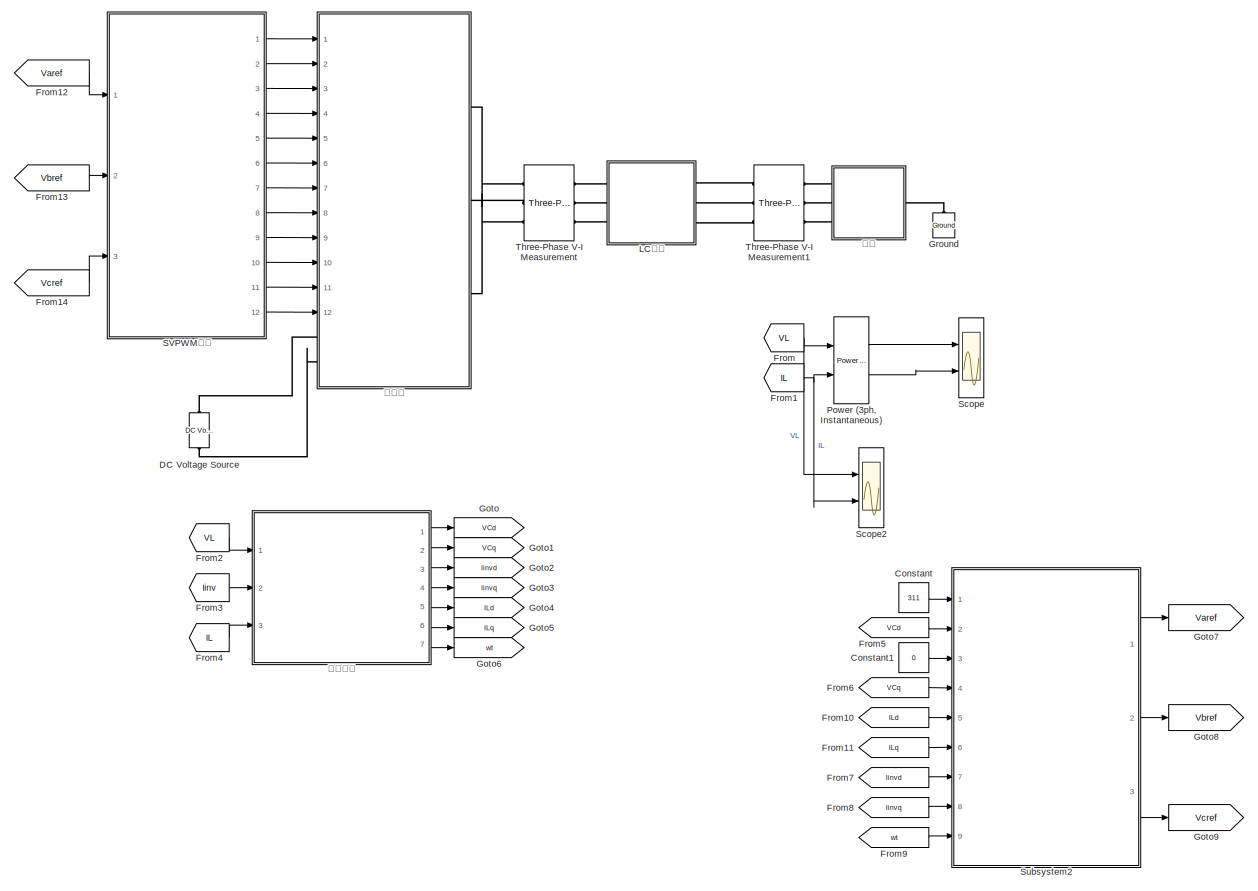
[diagram: root canvas - part 1/2, most of the canvas]
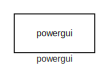
[diagram: root canvas - part 2/2, top left region]
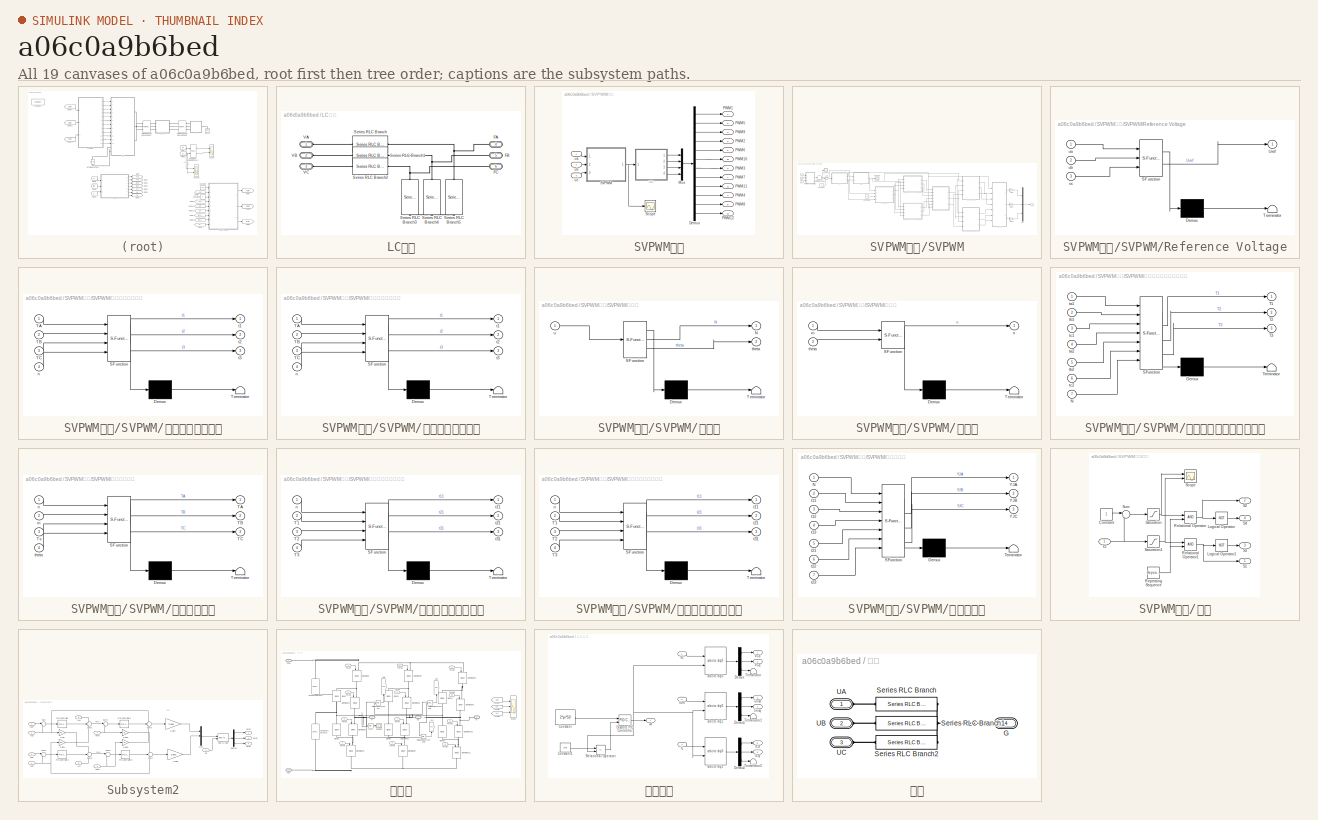
[diagram: thumbnail index - all 19 canvases of the model, root first then tree order]
MODEL slx_a06c0a9b6bed
KIND model
CONFIG AbsTol = auto
CONFIG EnableMultiTasking = off
CONFIG FixedStep = auto
CONFIG InitFcn = disp('开关频率20000Hz')\nTs = 1/20000;
CONFIG MaxStep = auto
CONFIG MinStep = auto
CONFIG RelTol = 1e-3
CONFIG SampleTimeConstraint = Unconstrained
CONFIG SolverName = ode23t
CONFIG StartTime = 0.0
CONFIG StopTime = 1
BLOCK [Constant] Constant
  Value = 311
BLOCK [Constant] Constant1
  Value = 0
BLOCK [Reference] DC Voltage Source  REF=spsDCVoltageSourceLib/DC Voltage Source
  Ports = [0, 0, 0, 0, 0, 1, 1]
  SourceBlock = spsDCVoltageSourceLib/DC Voltage Source
  SourceProductBaseCode = PS
  SourceType = DC Voltage Source
BLOCK [From] From
  GotoTag = VL
  TagVisibility = global
BLOCK [From] From1
  GotoTag = IL
  TagVisibility = global
BLOCK [From] From10
  GotoTag = ILd
BLOCK [From] From11
  GotoTag = ILq
BLOCK [From] From12
  GotoTag = Varef
BLOCK [From] From13
  GotoTag = Vbref
BLOCK [From] From14
  GotoTag = Vcref
BLOCK [From] From2
  GotoTag = VL
  TagVisibility = global
BLOCK [From] From3
  GotoTag = Iinv
  TagVisibility = global
BLOCK [From] From4
  GotoTag = IL
  TagVisibility = global
BLOCK [From] From5
  GotoTag = VCd
BLOCK [From] From6
  GotoTag = VCq
BLOCK [From] From7
  GotoTag = Iinvd
BLOCK [From] From8
  GotoTag = Iinvq
BLOCK [From] From9
  GotoTag = wt
BLOCK [Goto] Goto
  GotoTag = VCd
BLOCK [Goto] Goto1
  GotoTag = VCq
BLOCK [Goto] Goto2
  GotoTag = Iinvd
BLOCK [Goto] Goto3
  GotoTag = Iinvq
BLOCK [Goto] Goto4
  GotoTag = ILd
BLOCK [Goto] Goto5
  GotoTag = ILq
BLOCK [Goto] Goto6
  GotoTag = wt
BLOCK [Goto] Goto7
  GotoTag = Varef
BLOCK [Goto] Goto8
  GotoTag = Vbref
BLOCK [Goto] Goto9
  GotoTag = Vcref
BLOCK [Reference] Ground  REF=spsGroundLib/Ground
  NameLocation = right
  Ports = [0, 0, 0, 0, 0, 1]
  SourceBlock = spsGroundLib/Ground
  SourceProductBaseCode = PS
  SourceType = Ground
BLOCK [SubSystem] LC滤波
  Ports = [0, 0, 0, 0, 0, 3, 3]
  RequestExecContextInheritance = off
BLOCK [PMIOPort] LC滤波/FA
  Port = 4
  Side = Right
BLOCK [PMIOPort] LC滤波/FB
  Port = 5
  Side = Right
BLOCK [PMIOPort] LC滤波/FC
  Port = 6
  Side = Right
BLOCK [Reference] LC滤波/Series RLC Branch  REF=spsSeriesRLCBranchLib/Series RLC Branch
  Ports = [0, 0, 0, 0, 0, 1, 1]
  SourceBlock = spsSeriesRLCBranchLib/Series RLC Branch
  SourceProductBaseCode = PS
  SourceType = Series RLC Branch
BLOCK [Reference] LC滤波/Series RLC Branch1  REF=spsSeriesRLCBranchLib/Series RLC Branch
  Ports = [0, 0, 0, 0, 0, 1, 1]
  SourceBlock = spsSeriesRLCBranchLib/Series RLC Branch
  SourceProductBaseCode = PS
  SourceType = Series RLC Branch
BLOCK [Reference] LC滤波/Series RLC Branch2  REF=spsSeriesRLCBranchLib/Series RLC Branch
  Ports = [0, 0, 0, 0, 0, 1, 1]
  SourceBlock = spsSeriesRLCBranchLib/Series RLC Branch
  SourceProductBaseCode = PS
  SourceType = Series RLC Branch
BLOCK [Reference] LC滤波/Series RLC Branch3  REF=spsSeriesRLCBranchLib/Series RLC Branch
  NameLocation = left
  Ports = [0, 0, 0, 0, 0, 1, 1]
  SourceBlock = spsSeriesRLCBranchLib/Series RLC Branch
  SourceProductBaseCode = PS
  SourceType = Series RLC Branch
BLOCK [Reference] LC滤波/Series RLC Branch4  REF=spsSeriesRLCBranchLib/Series RLC Branch
  NameLocation = left
  Ports = [0, 0, 0, 0, 0, 1, 1]
  SourceBlock = spsSeriesRLCBranchLib/Series RLC Branch
  SourceProductBaseCode = PS
  SourceType = Series RLC Branch
BLOCK [Reference] LC滤波/Series RLC Branch5  REF=spsSeriesRLCBranchLib/Series RLC Branch
  NameLocation = left
  Ports = [0, 0, 0, 0, 0, 1, 1]
  SourceBlock = spsSeriesRLCBranchLib/Series RLC Branch
  SourceProductBaseCode = PS
  SourceType = Series RLC Branch
BLOCK [PMIOPort] LC滤波/VA
  Side = Left
BLOCK [PMIOPort] LC滤波/VB
  Port = 2
  Side = Left
BLOCK [PMIOPort] LC滤波/VC
  Port = 3
  Side = Left
BLOCK [Reference] Power (3ph, Instantaneous)  REF=spsPower3phInstantaneousLib/Power
(3ph, Instantaneous)
  Ports = [2, 2]
  SourceBlock = spsPower3phInstantaneousLib/Power\n(3ph, Instantaneous)
  SourceProductBaseCode = PS
  SourceType = Power (3ph, Instantaneous)
BLOCK [SubSystem] SVPWM调制
  Ports = [3, 12]
  RequestExecContextInheritance = off
BLOCK [Demux] SVPWM调制/Demux
  Outputs = 12
  Ports = [1, 12]
BLOCK [Mux] SVPWM调制/Mux
  DisplayOption = bar
  Ports = [4, 1]
BLOCK [Outport] SVPWM调制/PWM1
BLOCK [Outport] SVPWM调制/PWM10
  Port = 10
BLOCK [Outport] SVPWM调制/PWM11
  Port = 11
BLOCK [Outport] SVPWM调制/PWM12
  Port = 12
BLOCK [Outport] SVPWM调制/PWM2
  Port = 2
BLOCK [Outport] SVPWM调制/PWM3
  Port = 3
BLOCK [Outport] SVPWM调制/PWM4
  Port = 4
BLOCK [Outport] SVPWM调制/PWM5
  Port = 5
BLOCK [Outport] SVPWM调制/PWM6
  Port = 6
BLOCK [Outport] SVPWM调制/PWM7
  Port = 7
BLOCK [Outport] SVPWM调制/PWM8
  Port = 8
BLOCK [Outport] SVPWM调制/PWM9
  Port = 9
BLOCK [SubSystem] SVPWM调制/SVPWM
  Ports = [3, 1]
  RequestExecContextInheritance = off
BLOCK [ComplexToMagnitudeAngle] SVPWM调制/SVPWM/Complex to Magnitude-Angle
  Ports = [1, 2]
BLOCK [Constant] SVPWM调制/SVPWM/Constant
  Value = pi
BLOCK [Constant] SVPWM调制/SVPWM/Constant1
  Value = Ts
BLOCK [Gain] SVPWM调制/SVPWM/Gain
  Gain = 1/Ts
BLOCK [Gain] SVPWM调制/SVPWM/Gain1
  Gain = 1/Ts
BLOCK [Gain] SVPWM调制/SVPWM/Gain2
  Gain = 1/Ts
BLOCK [Mux] SVPWM调制/SVPWM/Mux
  DisplayOption = bar
  Inputs = 3
  Ports = [3, 1]
BLOCK [SubSystem] SVPWM调制/SVPWM/Reference Voltage
  ErrorFcn = Stateflow.Translate.translate
  PermitHierarchicalResolution = ExplicitOnly
  Ports = [3, 1]
  RequestExecContextInheritance = off
  SFBlockType = MATLAB Function
  TreatAsAtomicUnit = on
BLOCK [Demux] SVPWM调制/SVPWM/Reference Voltage/ Demux 
  Outputs = 1
  Ports = [1, 1]
BLOCK [S-Function] SVPWM调制/SVPWM/Reference Voltage/ SFunction 
  EnableBusSupport = on
  FunctionName = sf_sfun
  PortCounts = [3 2]
  Ports = [3, 2]
  SFcnIsStateOwnerBlock = off
  SFunctionDeploymentMode = off
  Tag = Stateflow S-Function 2
BLOCK [Terminator] SVPWM调制/SVPWM/Reference Voltage/ Terminator 
BLOCK [Outport] SVPWM调制/SVPWM/Reference Voltage/Uref
BLOCK [Inport] SVPWM调制/SVPWM/Reference Voltage/ua
BLOCK [Inport] SVPWM调制/SVPWM/Reference Voltage/ub
  Port = 2
BLOCK [Inport] SVPWM调制/SVPWM/Reference Voltage/uc
  Port = 3
BLOCK [Scope] SVPWM调制/SVPWM/Scope2
  Floating = off
  NumInputPorts = 1
  Ports = [1]
  ScopeSpecificationString = Simulink.scopes.TimeScopeBlockCfg('CurrentConfiguration', extmgr.ConfigurationSet(extmgr.Configuration('Core','General UI',true),extmgr.Configuration('Core','Source UI',true),extmgr.Configuration('Sources','WiredSimulink',true,'DataLoggingVariableName','ScopeData2'),extmgr.Configuration('Visuals','Time Domain',true,'SerializedDisplays',{struct('MinYLimReal','-3.61601','MaxYLimReal','3.90932','YLab...<+1433ch>
BLOCK [Scope] SVPWM调制/SVPWM/Scope3
  Floating = off
  NumInputPorts = 1
  Ports = [1]
  ScopeSpecificationString = Simulink.scopes.TimeScopeBlockCfg('CurrentConfiguration', extmgr.ConfigurationSet(extmgr.Configuration('Core','General UI',true),extmgr.Configuration('Core','Source UI',true),extmgr.Configuration('Sources','WiredSimulink',true,'DataLoggingVariableName','ScopeData1'),extmgr.Configuration('Visuals','Time Domain',true,'SerializedDisplays',{struct('MinYLimReal','2.625','MaxYLimReal','6.375','YLabelRea...<+1390ch>
BLOCK [Sum] SVPWM调制/SVPWM/Sum
  Inputs = |++
  Ports = [2, 1]
BLOCK [Outport] SVPWM调制/SVPWM/YJ
BLOCK [Inport] SVPWM调制/SVPWM/ua
BLOCK [Inport] SVPWM调制/SVPWM/ub
  Port = 2
BLOCK [Inport] SVPWM调制/SVPWM/uc
  Port = 3
BLOCK [SubSystem] SVPWM调制/SVPWM/上半周期时间分配
  ErrorFcn = Stateflow.Translate.translate
  PermitHierarchicalResolution = ExplicitOnly
  Ports = [4, 3]
  RequestExecContextInheritance = off
  SFBlockType = MATLAB Function
  TreatAsAtomicUnit = on
BLOCK [Demux] SVPWM调制/SVPWM/上半周期时间分配/ Demux 
  Outputs = 1
  Ports = [1, 1]
BLOCK [S-Function] SVPWM调制/SVPWM/上半周期时间分配/ SFunction 
  EnableBusSupport = on
  FunctionName = sf_sfun
  PortCounts = [4 4]
  Ports = [4, 4]
  SFcnIsStateOwnerBlock = off
  SFunctionDeploymentMode = off
  Tag = Stateflow S-Function 5
BLOCK [Terminator] SVPWM调制/SVPWM/上半周期时间分配/ Terminator 
BLOCK [Inport] SVPWM调制/SVPWM/上半周期时间分配/TA
BLOCK [Inport] SVPWM调制/SVPWM/上半周期时间分配/TB
  Port = 2
BLOCK [Inport] SVPWM调制/SVPWM/上半周期时间分配/TC
  Port = 3
BLOCK [Inport] SVPWM调制/SVPWM/上半周期时间分配/n
  Port = 4
BLOCK [Outport] SVPWM调制/SVPWM/上半周期时间分配/t1
BLOCK [Outport] SVPWM调制/SVPWM/上半周期时间分配/t2
  Port = 2
BLOCK [Outport] SVPWM调制/SVPWM/上半周期时间分配/t3
  Port = 3
BLOCK [SubSystem] SVPWM调制/SVPWM/下半周期时间分配
  ErrorFcn = Stateflow.Translate.translate
  PermitHierarchicalResolution = ExplicitOnly
  Ports = [4, 3]
  RequestExecContextInheritance = off
  SFBlockType = MATLAB Function
  TreatAsAtomicUnit = on
BLOCK [Demux] SVPWM调制/SVPWM/下半周期时间分配/ Demux 
  Outputs = 1
  Ports = [1, 1]
BLOCK [S-Function] SVPWM调制/SVPWM/下半周期时间分配/ SFunction 
  EnableBusSupport = on
  FunctionName = sf_sfun
  PortCounts = [4 4]
  Ports = [4, 4]
  SFcnIsStateOwnerBlock = off
  SFunctionDeploymentMode = off
  Tag = Stateflow S-Function 6
BLOCK [Terminator] SVPWM调制/SVPWM/下半周期时间分配/ Terminator 
BLOCK [Inport] SVPWM调制/SVPWM/下半周期时间分配/TA
BLOCK [Inport] SVPWM调制/SVPWM/下半周期时间分配/TB
  Port = 2
BLOCK [Inport] SVPWM调制/SVPWM/下半周期时间分配/TC
  Port = 3
BLOCK [Inport] SVPWM调制/SVPWM/下半周期时间分配/n
  Port = 4
BLOCK [Outport] SVPWM调制/SVPWM/下半周期时间分配/t1
BLOCK [Outport] SVPWM调制/SVPWM/下半周期时间分配/t2
  Port = 2
BLOCK [Outport] SVPWM调制/SVPWM/下半周期时间分配/t3
  Port = 3
BLOCK [SubSystem] SVPWM调制/SVPWM/大扇区
  ErrorFcn = Stateflow.Translate.translate
  PermitHierarchicalResolution = ExplicitOnly
  Ports = [1, 2]
  RequestExecContextInheritance = off
  SFBlockType = MATLAB Function
  TreatAsAtomicUnit = on
BLOCK [Demux] SVPWM调制/SVPWM/大扇区/ Demux 
  Outputs = 1
  Ports = [1, 1]
BLOCK [S-Function] SVPWM调制/SVPWM/大扇区/ SFunction 
  EnableBusSupport = on
  FunctionName = sf_sfun
  PortCounts = [1 3]
  Ports = [1, 3]
  SFcnIsStateOwnerBlock = off
  SFunctionDeploymentMode = off
  Tag = Stateflow S-Function 1
BLOCK [Terminator] SVPWM调制/SVPWM/大扇区/ Terminator 
BLOCK [Outport] SVPWM调制/SVPWM/大扇区/N
BLOCK [Outport] SVPWM调制/SVPWM/大扇区/theta
  Port = 2
BLOCK [Inport] SVPWM调制/SVPWM/大扇区/u
BLOCK [SubSystem] SVPWM调制/SVPWM/小扇区
  ErrorFcn = Stateflow.Translate.translate
  PermitHierarchicalResolution = ExplicitOnly
  Ports = [2, 1]
  RequestExecContextInheritance = off
  SFBlockType = MATLAB Function
  TreatAsAtomicUnit = on
BLOCK [Demux] SVPWM调制/SVPWM/小扇区/ Demux 
  Outputs = 1
  Ports = [1, 1]
BLOCK [S-Function] SVPWM调制/SVPWM/小扇区/ SFunction 
  EnableBusSupport = on
  FunctionName = sf_sfun
  PortCounts = [2 2]
  Ports = [2, 2]
  SFcnIsStateOwnerBlock = off
  SFunctionDeploymentMode = off
  Tag = Stateflow S-Function 3
BLOCK [Terminator] SVPWM调制/SVPWM/小扇区/ Terminator 
BLOCK [Inport] SVPWM调制/SVPWM/小扇区/m
BLOCK [Outport] SVPWM调制/SVPWM/小扇区/n
BLOCK [Inport] SVPWM调制/SVPWM/小扇区/theta
  Port = 2
BLOCK [SubSystem] SVPWM调制/SVPWM/按规律选择实际时间分配
  ErrorFcn = Stateflow.Translate.translate
  PermitHierarchicalResolution = ExplicitOnly
  Ports = [7, 3]
  RequestExecContextInheritance = off
  SFBlockType = MATLAB Function
  TreatAsAtomicUnit = on
BLOCK [Demux] SVPWM调制/SVPWM/按规律选择实际时间分配/ Demux 
  Outputs = 1
  Ports = [1, 1]
BLOCK [S-Function] SVPWM调制/SVPWM/按规律选择实际时间分配/ SFunction 
  EnableBusSupport = on
  FunctionName = sf_sfun
  PortCounts = [7 4]
  Ports = [7, 4]
  SFcnIsStateOwnerBlock = off
  SFunctionDeploymentMode = off
  Tag = Stateflow S-Function 7
BLOCK [Terminator] SVPWM调制/SVPWM/按规律选择实际时间分配/ Terminator 
BLOCK [Inport] SVPWM调制/SVPWM/按规律选择实际时间分配/N
  Port = 7
BLOCK [Outport] SVPWM调制/SVPWM/按规律选择实际时间分配/T1
BLOCK [Outport] SVPWM调制/SVPWM/按规律选择实际时间分配/T2
  Port = 2
BLOCK [Outport] SVPWM调制/SVPWM/按规律选择实际时间分配/T3
  Port = 3
BLOCK [Inport] SVPWM调制/SVPWM/按规律选择实际时间分配/ta1
BLOCK [Inport] SVPWM调制/SVPWM/按规律选择实际时间分配/ta2
  Port = 4
BLOCK [Inport] SVPWM调制/SVPWM/按规律选择实际时间分配/tb1
  Port = 2
BLOCK [Inport] SVPWM调制/SVPWM/按规律选择实际时间分配/tb2
  Port = 5
BLOCK [Inport] SVPWM调制/SVPWM/按规律选择实际时间分配/tc1
  Port = 3
BLOCK [Inport] SVPWM调制/SVPWM/按规律选择实际时间分配/tc2
  Port = 6
BLOCK [SubSystem] SVPWM调制/SVPWM/矢量作用时间
  ErrorFcn = Stateflow.Translate.translate
  PermitHierarchicalResolution = ExplicitOnly
  Ports = [4, 3]
  RequestExecContextInheritance = off
  SFBlockType = MATLAB Function
  TreatAsAtomicUnit = on
BLOCK [Demux] SVPWM调制/SVPWM/矢量作用时间/ Demux 
  Outputs = 1
  Ports = [1, 1]
BLOCK [S-Function] SVPWM调制/SVPWM/矢量作用时间/ SFunction 
  EnableBusSupport = on
  FunctionName = sf_sfun
  PortCounts = [4 4]
  Ports = [4, 4]
  SFcnIsStateOwnerBlock = off
  SFunctionDeploymentMode = off
  Tag = Stateflow S-Function 4
BLOCK [Terminator] SVPWM调制/SVPWM/矢量作用时间/ Terminator 
BLOCK [Outport] SVPWM调制/SVPWM/矢量作用时间/TA
BLOCK [Outport] SVPWM调制/SVPWM/矢量作用时间/TB
  Port = 2
BLOCK [Outport] SVPWM调制/SVPWM/矢量作用时间/TC
  Port = 3
BLOCK [Inport] SVPWM调制/SVPWM/矢量作用时间/Ts
  Port = 3
BLOCK [Inport] SVPWM调制/SVPWM/矢量作用时间/m
  Port = 2
BLOCK [Inport] SVPWM调制/SVPWM/矢量作用时间/n
BLOCK [Inport] SVPWM调制/SVPWM/矢量作用时间/theta
  Port = 4
BLOCK [SubSystem] SVPWM调制/SVPWM/第一大扇区羊角分配
  ErrorFcn = Stateflow.Translate.translate
  PermitHierarchicalResolution = ExplicitOnly
  Ports = [4, 3]
  RequestExecContextInheritance = off
  SFBlockType = MATLAB Function
  TreatAsAtomicUnit = on
BLOCK [Demux] SVPWM调制/SVPWM/第一大扇区羊角分配/ Demux 
  Outputs = 1
  Ports = [1, 1]
BLOCK [S-Function] SVPWM调制/SVPWM/第一大扇区羊角分配/ SFunction 
  EnableBusSupport = on
  FunctionName = sf_sfun
  PortCounts = [4 4]
  Ports = [4, 4]
  SFcnIsStateOwnerBlock = off
  SFunctionDeploymentMode = off
  Tag = Stateflow S-Function 8
BLOCK [Terminator] SVPWM调制/SVPWM/第一大扇区羊角分配/ Terminator 
BLOCK [Inport] SVPWM调制/SVPWM/第一大扇区羊角分配/T1
  Port = 2
BLOCK [Inport] SVPWM调制/SVPWM/第一大扇区羊角分配/T2
  Port = 3
BLOCK [Inport] SVPWM调制/SVPWM/第一大扇区羊角分配/T3
  Port = 4
BLOCK [Inport] SVPWM调制/SVPWM/第一大扇区羊角分配/n
BLOCK [Outport] SVPWM调制/SVPWM/第一大扇区羊角分配/t11
BLOCK [Outport] SVPWM调制/SVPWM/第一大扇区羊角分配/t21
  Port = 2
BLOCK [Outport] SVPWM调制/SVPWM/第一大扇区羊角分配/t31
  Port = 3
BLOCK [SubSystem] SVPWM调制/SVPWM/第二大扇区羊角分配
  ErrorFcn = Stateflow.Translate.translate
  PermitHierarchicalResolution = ExplicitOnly
  Ports = [4, 3]
  RequestExecContextInheritance = off
  SFBlockType = MATLAB Function
  TreatAsAtomicUnit = on
BLOCK [Demux] SVPWM调制/SVPWM/第二大扇区羊角分配/ Demux 
  Outputs = 1
  Ports = [1, 1]
BLOCK [S-Function] SVPWM调制/SVPWM/第二大扇区羊角分配/ SFunction 
  EnableBusSupport = on
  FunctionName = sf_sfun
  PortCounts = [4 4]
  Ports = [4, 4]
  SFcnIsStateOwnerBlock = off
  SFunctionDeploymentMode = off
  Tag = Stateflow S-Function 9
BLOCK [Terminator] SVPWM调制/SVPWM/第二大扇区羊角分配/ Terminator 
BLOCK [Inport] SVPWM调制/SVPWM/第二大扇区羊角分配/T1
  Port = 2
BLOCK [Inport] SVPWM调制/SVPWM/第二大扇区羊角分配/T2
  Port = 3
BLOCK [Inport] SVPWM调制/SVPWM/第二大扇区羊角分配/T3
  Port = 4
BLOCK [Inport] SVPWM调制/SVPWM/第二大扇区羊角分配/n
BLOCK [Outport] SVPWM调制/SVPWM/第二大扇区羊角分配/t11
BLOCK [Outport] SVPWM调制/SVPWM/第二大扇区羊角分配/t21
  Port = 2
BLOCK [Outport] SVPWM调制/SVPWM/第二大扇区羊角分配/t31
  Port = 3
BLOCK [SubSystem] SVPWM调制/SVPWM/羊角波生成
  ErrorFcn = Stateflow.Translate.translate
  PermitHierarchicalResolution = ExplicitOnly
  Ports = [7, 3]
  RequestExecContextInheritance = off
  SFBlockType = MATLAB Function
  TreatAsAtomicUnit = on
BLOCK [Demux] SVPWM调制/SVPWM/羊角波生成/ Demux 
  Outputs = 1
  Ports = [1, 1]
BLOCK [S-Function] SVPWM调制/SVPWM/羊角波生成/ SFunction 
  EnableBusSupport = on
  FunctionName = sf_sfun
  PortCounts = [7 4]
  Ports = [7, 4]
  SFcnIsStateOwnerBlock = off
  SFunctionDeploymentMode = off
  Tag = Stateflow S-Function 10
BLOCK [Terminator] SVPWM调制/SVPWM/羊角波生成/ Terminator 
BLOCK [Inport] SVPWM调制/SVPWM/羊角波生成/N
BLOCK [Outport] SVPWM调制/SVPWM/羊角波生成/YJA
BLOCK [Outport] SVPWM调制/SVPWM/羊角波生成/YJB
  Port = 2
BLOCK [Outport] SVPWM调制/SVPWM/羊角波生成/YJC
  Port = 3
BLOCK [Inport] SVPWM调制/SVPWM/羊角波生成/t11
  Port = 2
BLOCK [Inport] SVPWM调制/SVPWM/羊角波生成/t12
  Port = 3
BLOCK [Inport] SVPWM调制/SVPWM/羊角波生成/t13
  Port = 4
BLOCK [Inport] SVPWM调制/SVPWM/羊角波生成/t21
  Port = 5
BLOCK [Inport] SVPWM调制/SVPWM/羊角波生成/t22
  Port = 6
BLOCK [Inport] SVPWM调制/SVPWM/羊角波生成/t23
  Port = 7
BLOCK [Scope] SVPWM调制/Scope
  Floating = off
  NumInputPorts = 1
  Ports = [1]
  ScopeSpecificationString = Simulink.scopes.TimeScopeBlockCfg('CurrentConfiguration', extmgr.ConfigurationSet(extmgr.Configuration('Core','General UI',true),extmgr.Configuration('Core','Source UI',true),extmgr.Configuration('Sources','WiredSimulink',true,'DataLoggingVariableName','ScopeData1'),extmgr.Configuration('Visuals','Time Domain',true,'SerializedDisplays',{struct('MinYLimReal','-1.095','MaxYLimReal','1.01123','YLabel...<+1423ch>
BLOCK [Inport] SVPWM调制/ua
BLOCK [Inport] SVPWM调制/ub
  Port = 2
BLOCK [Inport] SVPWM调制/uc
  Port = 3
BLOCK [SubSystem] SVPWM调制/调制
  Ports = [1, 4]
  RequestExecContextInheritance = off
BLOCK [Constant] SVPWM调制/调制/Constant
BLOCK [Logic] SVPWM调制/调制/Logical Operator
  AllPortsSameDT = off
  Operator = NOT
  OutDataTypeStr = boolean
  Ports = [1, 1]
BLOCK [Logic] SVPWM调制/调制/Logical Operator1
  AllPortsSameDT = off
  Operator = NOT
  OutDataTypeStr = boolean
  Ports = [1, 1]
BLOCK [RelationalOperator] SVPWM调制/调制/Relational Operator
  InputSameDT = off
  OutDataTypeStr = boolean
  Ports = [2, 1]
  RndMeth = Simplest
BLOCK [RelationalOperator] SVPWM调制/调制/Relational Operator1
  InputSameDT = off
  OutDataTypeStr = boolean
  Ports = [2, 1]
  RndMeth = Simplest
BLOCK [Reference] SVPWM调制/调制/Repeating Sequence  REF=simulink/Sources/Repeating
Sequence
  Ports = [0, 1]
  SourceBlock = simulink/Sources/Repeating\nSequence
  SourceProductBaseCode = SL
  SourceType = Repeating table
BLOCK [Outport] SVPWM调制/调制/S1
BLOCK [Outport] SVPWM调制/调制/S2
  Port = 2
BLOCK [Outport] SVPWM调制/调制/S3
  Port = 3
BLOCK [Outport] SVPWM调制/调制/S4
  Port = 4
BLOCK [Saturate] SVPWM调制/调制/Saturation
  LowerLimit = 0
  UpperLimit = 1
BLOCK [Saturate] SVPWM调制/调制/Saturation1
  LowerLimit = 0
  UpperLimit = 1
BLOCK [Scope] SVPWM调制/调制/Scope
  Floating = off
  NumInputPorts = 2
  Ports = [2]
  ScopeSpecificationString = Simulink.scopes.TimeScopeBlockCfg('CurrentConfiguration', extmgr.ConfigurationSet(extmgr.Configuration('Core','General UI',true),extmgr.Configuration('Core','Source UI',true),extmgr.Configuration('Sources','WiredSimulink',true,'DataLoggingVariableName','ScopeData1'),extmgr.Configuration('Visuals','Time Domain',true,'SerializedDisplays',{struct('MinYLimReal','0.08877','MaxYLimReal','1.04922','YLabe...<+2097ch>
BLOCK [Sum] SVPWM调制/调制/Sum
  Inputs = |++
  Ports = [2, 1]
BLOCK [Inport] SVPWM调制/调制/YJ
BLOCK [Scope] Scope
  Floating = off
  NumInputPorts = 2
  Ports = [2]
  ScopeSpecificationString = Simulink.scopes.TimeScopeBlockCfg('CurrentConfiguration', extmgr.ConfigurationSet(extmgr.Configuration('Core','General UI',true),extmgr.Configuration('Core','Source UI',true),extmgr.Configuration('Sources','WiredSimulink',true,'DataLoggingVariableName','ScopeData4'),extmgr.Configuration('Visuals','Time Domain',true,'SerializedDisplays',{struct('MinYLimReal','-11395.52575','MaxYLimReal','102559.731...<+2047ch>
BLOCK [Scope] Scope2
  Floating = off
  NumInputPorts = 2
  Ports = [2]
  ScopeSpecificationString = Simulink.scopes.TimeScopeBlockCfg('CurrentConfiguration', extmgr.ConfigurationSet(extmgr.Configuration('Core','General UI',true),extmgr.Configuration('Core','Source UI',true),extmgr.Configuration('Sources','WiredSimulink',true,'DataLoggingVariableName','Vs','DataLogging',true),extmgr.Configuration('Visuals','Time Domain',true,'SerializedDisplays',{struct('MinYLimReal','-230.92697','MaxYLimReal','3...<+2066ch>
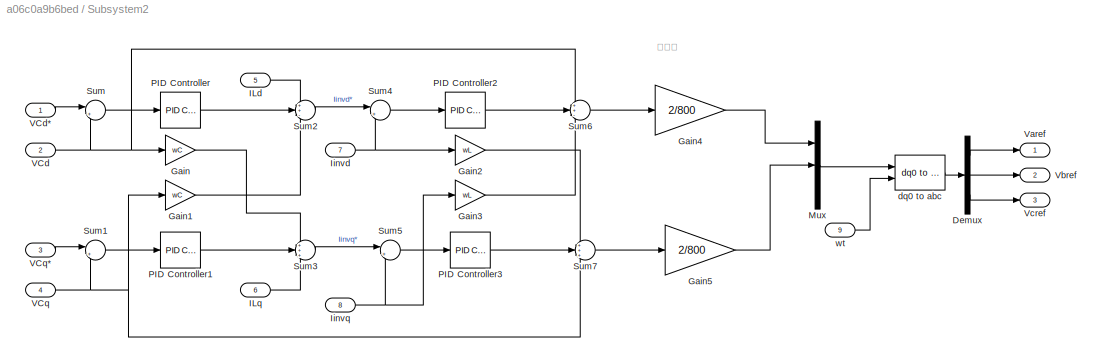
BLOCK [SubSystem] Subsystem2
  Ports = [9, 3]
  RequestExecContextInheritance = off
BLOCK [Demux] Subsystem2/Demux
  Outputs = 3
  Ports = [1, 3]
BLOCK [Gain] Subsystem2/Gain
  Gain = wC
BLOCK [Gain] Subsystem2/Gain1
  Gain = wC
BLOCK [Gain] Subsystem2/Gain2
  Gain = wL
BLOCK [Gain] Subsystem2/Gain3
  Gain = wL
BLOCK [Gain] Subsystem2/Gain4
  Gain = 2/800
BLOCK [Gain] Subsystem2/Gain5
  Gain = 2/800
BLOCK [Inport] Subsystem2/ILd
  Port = 5
BLOCK [Inport] Subsystem2/ILq
  Port = 6
BLOCK [Inport] Subsystem2/Iinvd
  Port = 7
BLOCK [Inport] Subsystem2/Iinvq
  Port = 8
BLOCK [Mux] Subsystem2/Mux
  DisplayOption = bar
  Inputs = 3
  Ports = [3, 1]
BLOCK [Reference] Subsystem2/PID Controller  REF=slpidlib/PID Controller
  Ports = [1, 1]
  SourceBlock = slpidlib/PID Controller
  SourceProductBaseCode = SL
  SourceType = PID 1dof
BLOCK [Reference] Subsystem2/PID Controller1  REF=slpidlib/PID Controller
  Ports = [1, 1]
  SourceBlock = slpidlib/PID Controller
  SourceProductBaseCode = SL
  SourceType = PID 1dof
BLOCK [Reference] Subsystem2/PID Controller2  REF=slpidlib/PID Controller
  Ports = [1, 1]
  SourceBlock = slpidlib/PID Controller
  SourceProductBaseCode = SL
  SourceType = PID 1dof
BLOCK [Reference] Subsystem2/PID Controller3  REF=slpidlib/PID Controller
  Ports = [1, 1]
  SourceBlock = slpidlib/PID Controller
  SourceProductBaseCode = SL
  SourceType = PID 1dof
BLOCK [Sum] Subsystem2/Sum
  Inputs = |+-
  Ports = [2, 1]
BLOCK [Sum] Subsystem2/Sum1
  Inputs = |+-
  Ports = [2, 1]
BLOCK [Sum] Subsystem2/Sum2
  Inputs = ++-
  Ports = [3, 1]
BLOCK [Sum] Subsystem2/Sum3
  Inputs = +++
  Ports = [3, 1]
BLOCK [Sum] Subsystem2/Sum4
  Inputs = |+-
  Ports = [2, 1]
BLOCK [Sum] Subsystem2/Sum5
  Inputs = |+-
  Ports = [2, 1]
BLOCK [Sum] Subsystem2/Sum6
  Inputs = ++-
  Ports = [3, 1]
BLOCK [Sum] Subsystem2/Sum7
  Inputs = +++
  Ports = [3, 1]
BLOCK [Inport] Subsystem2/VCd
  Port = 2
BLOCK [Inport] Subsystem2/VCd*
BLOCK [Inport] Subsystem2/VCq
  Port = 4
BLOCK [Inport] Subsystem2/VCq*
  Port = 3
BLOCK [Outport] Subsystem2/Varef
BLOCK [Outport] Subsystem2/Vbref
  Port = 2
BLOCK [Outport] Subsystem2/Vcref
  Port = 3
BLOCK [Reference] Subsystem2/dq0 to abc  REF=spsdq0toabcLib/dq0 to abc
  Ports = [2, 1]
  SourceBlock = spsdq0toabcLib/dq0 to abc
  SourceProductBaseCode = PS
  SourceType = dq0 to abc Transformation
BLOCK [Inport] Subsystem2/wt
  Port = 9
BLOCK [Reference] Three-Phase V-I Measurement  REF=spsThreePhaseVIMeasurementLib/Three-Phase
V-I Measurement
  Ports = [0, 0, 0, 0, 0, 3, 3]
  SourceBlock = spsThreePhaseVIMeasurementLib/Three-Phase\nV-I Measurement
  SourceProductBaseCode = PS
  SourceType = Three-Phase VI Measurement
BLOCK [Reference] Three-Phase V-I Measurement1  REF=spsThreePhaseVIMeasurementLib/Three-Phase
V-I Measurement
  Ports = [0, 0, 0, 0, 0, 3, 3]
  SourceBlock = spsThreePhaseVIMeasurementLib/Three-Phase\nV-I Measurement
  SourceProductBaseCode = PS
  SourceType = Three-Phase VI Measurement
BLOCK [Reference] powergui  REF=spspowerguiLib/powergui
  Ports = []
  Priority = 1
  SourceBlock = spspowerguiLib/powergui
  SourceProductBaseCode = PS
  SourceType = PSB option menu block
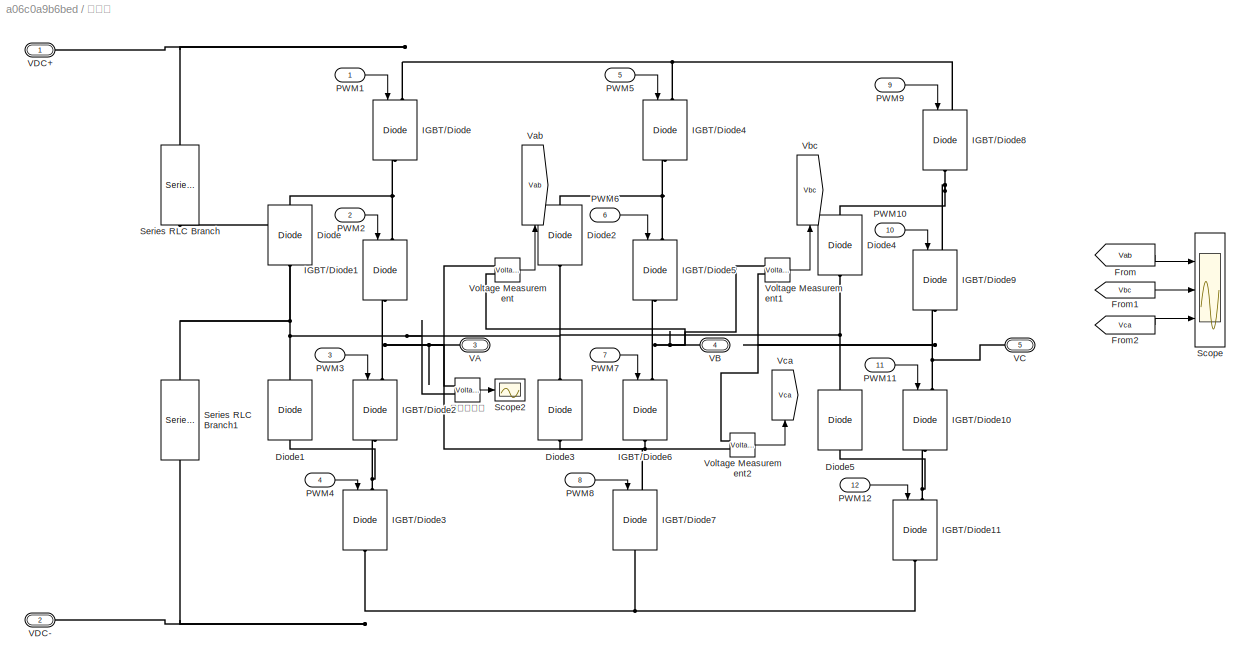
BLOCK [SubSystem] 主电路
  Ports = [12, 0, 0, 0, 0, 2, 3]
  RequestExecContextInheritance = off
BLOCK [Reference] 主电路/Diode  REF=spsDiodeLib/Diode
  NameLocation = right
  Ports = [0, 0, 0, 0, 0, 1, 1]
  SourceBlock = spsDiodeLib/Diode
  SourceProductBaseCode = PS
  SourceType = Diode
BLOCK [Reference] 主电路/Diode1  REF=spsDiodeLib/Diode
  NameLocation = right
  Ports = [0, 0, 0, 0, 0, 1, 1]
  SourceBlock = spsDiodeLib/Diode
  SourceProductBaseCode = PS
  SourceType = Diode
BLOCK [Reference] 主电路/Diode2  REF=spsDiodeLib/Diode
  NameLocation = right
  Ports = [0, 0, 0, 0, 0, 1, 1]
  SourceBlock = spsDiodeLib/Diode
  SourceProductBaseCode = PS
  SourceType = Diode
BLOCK [Reference] 主电路/Diode3  REF=spsDiodeLib/Diode
  NameLocation = right
  Ports = [0, 0, 0, 0, 0, 1, 1]
  SourceBlock = spsDiodeLib/Diode
  SourceProductBaseCode = PS
  SourceType = Diode
BLOCK [Reference] 主电路/Diode4  REF=spsDiodeLib/Diode
  NameLocation = right
  Ports = [0, 0, 0, 0, 0, 1, 1]
  SourceBlock = spsDiodeLib/Diode
  SourceProductBaseCode = PS
  SourceType = Diode
BLOCK [Reference] 主电路/Diode5  REF=spsDiodeLib/Diode
  NameLocation = right
  Ports = [0, 0, 0, 0, 0, 1, 1]
  SourceBlock = spsDiodeLib/Diode
  SourceProductBaseCode = PS
  SourceType = Diode
BLOCK [From] 主电路/From
  GotoTag = Vab
BLOCK [From] 主电路/From1
  GotoTag = Vbc
BLOCK [From] 主电路/From2
  GotoTag = Vca
BLOCK [Reference] 主电路/IGBT//Diode  REF=spsIGBTDiodeLib/IGBT//Diode
  NameLocation = left
  Ports = [1, 0, 0, 0, 0, 1, 1]
  SourceBlock = spsIGBTDiodeLib/IGBT//Diode
  SourceProductBaseCode = PS
  SourceType = IGBT/Diode
BLOCK [Reference] 主电路/IGBT//Diode1  REF=spsIGBTDiodeLib/IGBT//Diode
  NameLocation = left
  Ports = [1, 0, 0, 0, 0, 1, 1]
  SourceBlock = spsIGBTDiodeLib/IGBT//Diode
  SourceProductBaseCode = PS
  SourceType = IGBT/Diode
BLOCK [Reference] 主电路/IGBT//Diode10  REF=spsIGBTDiodeLib/IGBT//Diode
  NameLocation = left
  Ports = [1, 0, 0, 0, 0, 1, 1]
  SourceBlock = spsIGBTDiodeLib/IGBT//Diode
  SourceProductBaseCode = PS
  SourceType = IGBT/Diode
BLOCK [Reference] 主电路/IGBT//Diode11  REF=spsIGBTDiodeLib/IGBT//Diode
  NameLocation = left
  Ports = [1, 0, 0, 0, 0, 1, 1]
  SourceBlock = spsIGBTDiodeLib/IGBT//Diode
  SourceProductBaseCode = PS
  SourceType = IGBT/Diode
BLOCK [Reference] 主电路/IGBT//Diode2  REF=spsIGBTDiodeLib/IGBT//Diode
  NameLocation = left
  Ports = [1, 0, 0, 0, 0, 1, 1]
  SourceBlock = spsIGBTDiodeLib/IGBT//Diode
  SourceProductBaseCode = PS
  SourceType = IGBT/Diode
BLOCK [Reference] 主电路/IGBT//Diode3  REF=spsIGBTDiodeLib/IGBT//Diode
  NameLocation = left
  Ports = [1, 0, 0, 0, 0, 1, 1]
  SourceBlock = spsIGBTDiodeLib/IGBT//Diode
  SourceProductBaseCode = PS
  SourceType = IGBT/Diode
BLOCK [Reference] 主电路/IGBT//Diode4  REF=spsIGBTDiodeLib/IGBT//Diode
  NameLocation = left
  Ports = [1, 0, 0, 0, 0, 1, 1]
  SourceBlock = spsIGBTDiodeLib/IGBT//Diode
  SourceProductBaseCode = PS
  SourceType = IGBT/Diode
BLOCK [Reference] 主电路/IGBT//Diode5  REF=spsIGBTDiodeLib/IGBT//Diode
  NameLocation = left
  Ports = [1, 0, 0, 0, 0, 1, 1]
  SourceBlock = spsIGBTDiodeLib/IGBT//Diode
  SourceProductBaseCode = PS
  SourceType = IGBT/Diode
BLOCK [Reference] 主电路/IGBT//Diode6  REF=spsIGBTDiodeLib/IGBT//Diode
  NameLocation = left
  Ports = [1, 0, 0, 0, 0, 1, 1]
  SourceBlock = spsIGBTDiodeLib/IGBT//Diode
  SourceProductBaseCode = PS
  SourceType = IGBT/Diode
BLOCK [Reference] 主电路/IGBT//Diode7  REF=spsIGBTDiodeLib/IGBT//Diode
  NameLocation = left
  Ports = [1, 0, 0, 0, 0, 1, 1]
  SourceBlock = spsIGBTDiodeLib/IGBT//Diode
  SourceProductBaseCode = PS
  SourceType = IGBT/Diode
BLOCK [Reference] 主电路/IGBT//Diode8  REF=spsIGBTDiodeLib/IGBT//Diode
  NameLocation = left
  Ports = [1, 0, 0, 0, 0, 1, 1]
  SourceBlock = spsIGBTDiodeLib/IGBT//Diode
  SourceProductBaseCode = PS
  SourceType = IGBT/Diode
BLOCK [Reference] 主电路/IGBT//Diode9  REF=spsIGBTDiodeLib/IGBT//Diode
  NameLocation = left
  Ports = [1, 0, 0, 0, 0, 1, 1]
  SourceBlock = spsIGBTDiodeLib/IGBT//Diode
  SourceProductBaseCode = PS
  SourceType = IGBT/Diode
BLOCK [Inport] 主电路/PWM1
BLOCK [Inport] 主电路/PWM10
  Port = 10
BLOCK [Inport] 主电路/PWM11
  Port = 11
BLOCK [Inport] 主电路/PWM12
  Port = 12
BLOCK [Inport] 主电路/PWM2
  Port = 2
BLOCK [Inport] 主电路/PWM3
  Port = 3
BLOCK [Inport] 主电路/PWM4
  Port = 4
BLOCK [Inport] 主电路/PWM5
  Port = 5
BLOCK [Inport] 主电路/PWM6
  Port = 6
BLOCK [Inport] 主电路/PWM7
  Port = 7
BLOCK [Inport] 主电路/PWM8
  Port = 8
BLOCK [Inport] 主电路/PWM9
  Port = 9
BLOCK [Scope] 主电路/Scope
  Floating = off
  NumInputPorts = 3
  Ports = [3]
  ScopeSpecificationString = Simulink.scopes.TimeScopeBlockCfg('CurrentConfiguration', extmgr.ConfigurationSet(extmgr.Configuration('Core','General UI',true),extmgr.Configuration('Core','Source UI',true),extmgr.Configuration('Sources','WiredSimulink',true,'DataLoggingVariableName','ScopeData2'),extmgr.Configuration('Visuals','Time Domain',true,'SerializedDisplays',{struct('MinYLimReal','-974.54885','MaxYLimReal','831.6746','Y...<+2748ch>
BLOCK [Scope] 主电路/Scope2
  Floating = off
  NumInputPorts = 1
  Ports = [1]
  ScopeSpecificationString = Simulink.scopes.TimeScopeBlockCfg('CurrentConfiguration', extmgr.ConfigurationSet(extmgr.Configuration('Core','General UI',true),extmgr.Configuration('Core','Source UI',true),extmgr.Configuration('Sources','WiredSimulink',true,'DataLoggingVariableName','ScopeData3'),extmgr.Configuration('Visuals','Time Domain',true,'SerializedDisplays',{struct('MinYLimReal','-504.63244','MaxYLimReal','508.8935','Y...<+1403ch>
BLOCK [Reference] 主电路/Series RLC Branch  REF=spsSeriesRLCBranchLib/Series RLC Branch
  NameLocation = left
  Ports = [0, 0, 0, 0, 0, 1, 1]
  SourceBlock = spsSeriesRLCBranchLib/Series RLC Branch
  SourceProductBaseCode = PS
  SourceType = Series RLC Branch
BLOCK [Reference] 主电路/Series RLC Branch1  REF=spsSeriesRLCBranchLib/Series RLC Branch
  NameLocation = left
  Ports = [0, 0, 0, 0, 0, 1, 1]
  SourceBlock = spsSeriesRLCBranchLib/Series RLC Branch
  SourceProductBaseCode = PS
  SourceType = Series RLC Branch
BLOCK [PMIOPort] 主电路/VA
  Port = 3
  Side = Right
BLOCK [PMIOPort] 主电路/VB
  Port = 4
  Side = Right
BLOCK [PMIOPort] 主电路/VC
  Port = 5
  Side = Right
BLOCK [PMIOPort] 主电路/VDC+
  Side = Left
BLOCK [PMIOPort] 主电路/VDC-
  Port = 2
  Side = Left
BLOCK [Goto] 主电路/Vab
  GotoTag = Vab
  NameLocation = left
BLOCK [Goto] 主电路/Vbc
  GotoTag = Vbc
  NameLocation = left
BLOCK [Goto] 主电路/Vca
  GotoTag = Vca
  NameLocation = left
BLOCK [Reference] 主电路/Voltage Measurement  REF=spsVoltageMeasurementLib/Voltage Measurement
  Ports = [0, 1, 0, 0, 0, 2]
  SourceBlock = spsVoltageMeasurementLib/Voltage Measurement
  SourceProductBaseCode = PS
  SourceType = Voltage Measurement
  UserDataPersistent = on
BLOCK [Reference] 主电路/Voltage Measurement1  REF=spsVoltageMeasurementLib/Voltage Measurement
  Ports = [0, 1, 0, 0, 0, 2]
  SourceBlock = spsVoltageMeasurementLib/Voltage Measurement
  SourceProductBaseCode = PS
  SourceType = Voltage Measurement
  UserDataPersistent = on
BLOCK [Reference] 主电路/Voltage Measurement2  REF=spsVoltageMeasurementLib/Voltage Measurement
  Ports = [0, 1, 0, 0, 0, 2]
  SourceBlock = spsVoltageMeasurementLib/Voltage Measurement
  SourceProductBaseCode = PS
  SourceType = Voltage Measurement
  UserDataPersistent = on
BLOCK [Reference] 主电路/中性点电压  REF=spsVoltageMeasurementLib/Voltage Measurement
  Ports = [0, 1, 0, 0, 0, 2]
  SourceBlock = spsVoltageMeasurementLib/Voltage Measurement
  SourceProductBaseCode = PS
  SourceType = Voltage Measurement
  UserDataPersistent = on
BLOCK [SubSystem] 坐标变换
  Ports = [3, 7]
  RequestExecContextInheritance = off
BLOCK [Constant] 坐标变换/Constant
  Value = 2*pi*50
BLOCK [Constant] 坐标变换/Constant1
  Value = 2*pi
BLOCK [Demux] 坐标变换/Demux
  Outputs = 3
  Ports = [1, 3]
BLOCK [Demux] 坐标变换/Demux1
  Outputs = 3
  Ports = [1, 3]
BLOCK [Demux] 坐标变换/Demux2
  Outputs = 3
  Ports = [1, 3]
BLOCK [Reference] 坐标变换/Discrete PID Controller  REF=slpidlib/PID Controller
  Ports = [2, 1]
  SourceBlock = slpidlib/PID Controller
  SourceProductBaseCode = SL
  SourceType = PID 1dof
BLOCK [Inport] 坐标变换/IL
  Port = 3
BLOCK [Outport] 坐标变换/ILd
  Port = 5
BLOCK [Outport] 坐标变换/ILq
  Port = 6
BLOCK [Inport] 坐标变换/Iinv
  Port = 2
BLOCK [Outport] 坐标变换/Iinvd
  Port = 3
BLOCK [Outport] 坐标变换/Iinvq
  Port = 4
BLOCK [RelationalOperator] 坐标变换/Relational Operator
  InputSameDT = off
  Operator = <=
  OutDataTypeStr = boolean
  Ports = [2, 1]
  RndMeth = Simplest
BLOCK [Terminator] 坐标变换/Terminator
BLOCK [Terminator] 坐标变换/Terminator1
BLOCK [Terminator] 坐标变换/Terminator2
BLOCK [Outport] 坐标变换/VCd
BLOCK [Outport] 坐标变换/VCq
  Port = 2
BLOCK [Inport] 坐标变换/VL
BLOCK [Reference] 坐标变换/abc to dq0  REF=spsabctodq0Lib/abc to dq0
  Ports = [2, 1]
  SourceBlock = spsabctodq0Lib/abc to dq0
  SourceProductBaseCode = PS
  SourceType = abc to dq0 Transformation
BLOCK [Reference] 坐标变换/abc to dq1  REF=spsabctodq0Lib/abc to dq0
  Ports = [2, 1]
  SourceBlock = spsabctodq0Lib/abc to dq0
  SourceProductBaseCode = PS
  SourceType = abc to dq0 Transformation
BLOCK [Reference] 坐标变换/abc to dq2  REF=spsabctodq0Lib/abc to dq0
  Ports = [2, 1]
  SourceBlock = spsabctodq0Lib/abc to dq0
  SourceProductBaseCode = PS
  SourceType = abc to dq0 Transformation
BLOCK [Outport] 坐标变换/wt
  Port = 7
BLOCK [SubSystem] 负载
  Ports = [0, 0, 0, 0, 0, 3, 1]
  RequestExecContextInheritance = off
BLOCK [PMIOPort] 负载/G
  Port = 4
  Side = Right
BLOCK [Reference] 负载/Series RLC Branch  REF=spsSeriesRLCBranchLib/Series RLC Branch
  Ports = [0, 0, 0, 0, 0, 1, 1]
  SourceBlock = spsSeriesRLCBranchLib/Series RLC Branch
  SourceProductBaseCode = PS
  SourceType = Series RLC Branch
BLOCK [Reference] 负载/Series RLC Branch1  REF=spsSeriesRLCBranchLib/Series RLC Branch
  Ports = [0, 0, 0, 0, 0, 1, 1]
  SourceBlock = spsSeriesRLCBranchLib/Series RLC Branch
  SourceProductBaseCode = PS
  SourceType = Series RLC Branch
BLOCK [Reference] 负载/Series RLC Branch2  REF=spsSeriesRLCBranchLib/Series RLC Branch
  Ports = [0, 0, 0, 0, 0, 1, 1]
  SourceBlock = spsSeriesRLCBranchLib/Series RLC Branch
  SourceProductBaseCode = PS
  SourceType = Series RLC Branch
BLOCK [PMIOPort] 负载/UA
  Side = Left
BLOCK [PMIOPort] 负载/UB
  Port = 2
  Side = Left
BLOCK [PMIOPort] 负载/UC
  Port = 3
  Side = Left
ANNOTATION Subsystem2: 归一化
LINE Constant1:1 -> Subsystem2:3
LINE Constant:1 -> Subsystem2:1
LINE From10:1 -> Subsystem2:5
LINE From11:1 -> Subsystem2:6
LINE From12:1 -> SVPWM调制:1
LINE From13:1 -> SVPWM调制:2
LINE From14:1 -> SVPWM调制:3
NET From1:1 -> Power (3ph, Instantaneous):2, Scope2:2
LINE From2:1 -> 坐标变换:1
LINE From3:1 -> 坐标变换:2
LINE From4:1 -> 坐标变换:3
LINE From5:1 -> Subsystem2:2
LINE From6:1 -> Subsystem2:4
LINE From7:1 -> Subsystem2:7
LINE From8:1 -> Subsystem2:8
LINE From9:1 -> Subsystem2:9
NET From:1 -> Power (3ph, Instantaneous):1, Scope2:1
LINE Power (3ph, Instantaneous):1 -> Scope:1
LINE Power (3ph, Instantaneous):2 -> Scope:2
LINE SVPWM调制/Demux:1 -> SVPWM调制/PWM1:1
LINE SVPWM调制/Demux:10 -> SVPWM调制/PWM4:1
LINE SVPWM调制/Demux:11 -> SVPWM调制/PWM8:1
LINE SVPWM调制/Demux:12 -> SVPWM调制/PWM12:1
LINE SVPWM调制/Demux:2 -> SVPWM调制/PWM5:1
LINE SVPWM调制/Demux:3 -> SVPWM调制/PWM9:1
LINE SVPWM调制/Demux:4 -> SVPWM调制/PWM2:1
LINE SVPWM调制/Demux:5 -> SVPWM调制/PWM6:1
LINE SVPWM调制/Demux:6 -> SVPWM调制/PWM10:1
LINE SVPWM调制/Demux:7 -> SVPWM调制/PWM3:1
LINE SVPWM调制/Demux:8 -> SVPWM调制/PWM7:1
LINE SVPWM调制/Demux:9 -> SVPWM调制/PWM11:1
LINE SVPWM调制/Mux:1 -> SVPWM调制/Demux:1
NET SVPWM调制/SVPWM/Complex to Magnitude-Angle:1 -> SVPWM调制/SVPWM/小扇区:1, SVPWM调制/SVPWM/矢量作用时间:2
NET SVPWM调制/SVPWM/Complex to Magnitude-Angle:2 -> SVPWM调制/SVPWM/Scope2:1, SVPWM调制/SVPWM/Sum:1
LINE SVPWM调制/SVPWM/Constant1:1 -> SVPWM调制/SVPWM/矢量作用时间:3
LINE SVPWM调制/SVPWM/Constant:1 -> SVPWM调制/SVPWM/Sum:2
LINE SVPWM调制/SVPWM/Gain1:1 -> SVPWM调制/SVPWM/Mux:2
LINE SVPWM调制/SVPWM/Gain2:1 -> SVPWM调制/SVPWM/Mux:3
LINE SVPWM调制/SVPWM/Gain:1 -> SVPWM调制/SVPWM/Mux:1
LINE SVPWM调制/SVPWM/Mux:1 -> SVPWM调制/SVPWM/YJ:1
LINE SVPWM调制/SVPWM/Reference Voltage:1 -> SVPWM调制/SVPWM/Complex to Magnitude-Angle:1
LINE SVPWM调制/SVPWM/Sum:1 -> SVPWM调制/SVPWM/大扇区:1
LINE SVPWM调制/SVPWM/ua:1 -> SVPWM调制/SVPWM/Reference Voltage:1
LINE SVPWM调制/SVPWM/ub:1 -> SVPWM调制/SVPWM/Reference Voltage:2
LINE SVPWM调制/SVPWM/uc:1 -> SVPWM调制/SVPWM/Reference Voltage:3
LINE SVPWM调制/SVPWM/上半周期时间分配:1 -> SVPWM调制/SVPWM/按规律选择实际时间分配:1
LINE SVPWM调制/SVPWM/上半周期时间分配:2 -> SVPWM调制/SVPWM/按规律选择实际时间分配:2
LINE SVPWM调制/SVPWM/上半周期时间分配:3 -> SVPWM调制/SVPWM/按规律选择实际时间分配:3
LINE SVPWM调制/SVPWM/下半周期时间分配:1 -> SVPWM调制/SVPWM/按规律选择实际时间分配:4
LINE SVPWM调制/SVPWM/下半周期时间分配:2 -> SVPWM调制/SVPWM/按规律选择实际时间分配:5
LINE SVPWM调制/SVPWM/下半周期时间分配:3 -> SVPWM调制/SVPWM/按规律选择实际时间分配:6
NET SVPWM调制/SVPWM/大扇区:1 -> SVPWM调制/SVPWM/按规律选择实际时间分配:7, SVPWM调制/SVPWM/羊角波生成:1
NET SVPWM调制/SVPWM/大扇区:2 -> SVPWM调制/SVPWM/小扇区:2, SVPWM调制/SVPWM/矢量作用时间:4
NET SVPWM调制/SVPWM/小扇区:1 -> SVPWM调制/SVPWM/Scope3:1, SVPWM调制/SVPWM/上半周期时间分配:4, SVPWM调制/SVPWM/下半周期时间分配:4, SVPWM调制/SVPWM/矢量作用时间:1, SVPWM调制/SVPWM/第一大扇区羊角分配:1, SVPWM调制/SVPWM/第二大扇区羊角分配:1
NET SVPWM调制/SVPWM/按规律选择实际时间分配:1 -> SVPWM调制/SVPWM/第一大扇区羊角分配:2, SVPWM调制/SVPWM/第二大扇区羊角分配:2
NET SVPWM调制/SVPWM/按规律选择实际时间分配:2 -> SVPWM调制/SVPWM/第一大扇区羊角分配:3, SVPWM调制/SVPWM/第二大扇区羊角分配:3
NET SVPWM调制/SVPWM/按规律选择实际时间分配:3 -> SVPWM调制/SVPWM/第一大扇区羊角分配:4, SVPWM调制/SVPWM/第二大扇区羊角分配:4
NET SVPWM调制/SVPWM/矢量作用时间:1 -> SVPWM调制/SVPWM/上半周期时间分配:1, SVPWM调制/SVPWM/下半周期时间分配:1
NET SVPWM调制/SVPWM/矢量作用时间:2 -> SVPWM调制/SVPWM/上半周期时间分配:2, SVPWM调制/SVPWM/下半周期时间分配:2
NET SVPWM调制/SVPWM/矢量作用时间:3 -> SVPWM调制/SVPWM/上半周期时间分配:3, SVPWM调制/SVPWM/下半周期时间分配:3
LINE SVPWM调制/SVPWM/第一大扇区羊角分配:1 -> SVPWM调制/SVPWM/羊角波生成:2
LINE SVPWM调制/SVPWM/第一大扇区羊角分配:2 -> SVPWM调制/SVPWM/羊角波生成:3
LINE SVPWM调制/SVPWM/第一大扇区羊角分配:3 -> SVPWM调制/SVPWM/羊角波生成:4
LINE SVPWM调制/SVPWM/第二大扇区羊角分配:1 -> SVPWM调制/SVPWM/羊角波生成:5
LINE SVPWM调制/SVPWM/第二大扇区羊角分配:2 -> SVPWM调制/SVPWM/羊角波生成:6
LINE SVPWM调制/SVPWM/第二大扇区羊角分配:3 -> SVPWM调制/SVPWM/羊角波生成:7
LINE SVPWM调制/SVPWM/羊角波生成:1 -> SVPWM调制/SVPWM/Gain:1
LINE SVPWM调制/SVPWM/羊角波生成:2 -> SVPWM调制/SVPWM/Gain1:1
LINE SVPWM调制/SVPWM/羊角波生成:3 -> SVPWM调制/SVPWM/Gain2:1
NET SVPWM调制/SVPWM:1 -> SVPWM调制/Scope:1, SVPWM调制/调制:1
LINE SVPWM调制/ua:1 -> SVPWM调制/SVPWM:1
LINE SVPWM调制/ub:1 -> SVPWM调制/SVPWM:2
LINE SVPWM调制/uc:1 -> SVPWM调制/SVPWM:3
LINE SVPWM调制/调制/Constant:1 -> SVPWM调制/调制/Sum:1
LINE SVPWM调制/调制/Logical Operator1:1 -> SVPWM调制/调制/S3:1
LINE SVPWM调制/调制/Logical Operator:1 -> SVPWM调制/调制/S4:1
NET SVPWM调制/调制/Relational Operator1:1 -> SVPWM调制/调制/Logical Operator1:1, SVPWM调制/调制/S1:1
NET SVPWM调制/调制/Relational Operator:1 -> SVPWM调制/调制/Logical Operator:1, SVPWM调制/调制/S2:1
NET SVPWM调制/调制/Repeating Sequence:1 -> SVPWM调制/调制/Relational Operator1:2, SVPWM调制/调制/Relational Operator:2
NET SVPWM调制/调制/Saturation1:1 -> SVPWM调制/调制/Relational Operator1:1, SVPWM调制/调制/Scope:2
NET SVPWM调制/调制/Saturation:1 -> SVPWM调制/调制/Relational Operator:1, SVPWM调制/调制/Scope:1
LINE SVPWM调制/调制/Sum:1 -> SVPWM调制/调制/Saturation:1
NET SVPWM调制/调制/YJ:1 -> SVPWM调制/调制/Saturation1:1, SVPWM调制/调制/Sum:2
LINE SVPWM调制/调制:1 -> SVPWM调制/Mux:1
LINE SVPWM调制/调制:2 -> SVPWM调制/Mux:2
LINE SVPWM调制/调制:3 -> SVPWM调制/Mux:3
LINE SVPWM调制/调制:4 -> SVPWM调制/Mux:4
LINE SVPWM调制:1 -> 主电路:1
LINE SVPWM调制:10 -> 主电路:10
LINE SVPWM调制:11 -> 主电路:11
LINE SVPWM调制:12 -> 主电路:12
LINE SVPWM调制:2 -> 主电路:2
LINE SVPWM调制:3 -> 主电路:3
LINE SVPWM调制:4 -> 主电路:4
LINE SVPWM调制:5 -> 主电路:5
LINE SVPWM调制:6 -> 主电路:6
LINE SVPWM调制:7 -> 主电路:7
LINE SVPWM调制:8 -> 主电路:8
LINE SVPWM调制:9 -> 主电路:9
LINE Subsystem2/Demux:1 -> Subsystem2/Varef:1
LINE Subsystem2/Demux:2 -> Subsystem2/Vbref:1
LINE Subsystem2/Demux:3 -> Subsystem2/Vcref:1
LINE Subsystem2/Gain1:1 -> Subsystem2/Sum2:3
LINE Subsystem2/Gain2:1 -> Subsystem2/Sum7:1
LINE Subsystem2/Gain3:1 -> Subsystem2/Sum6:3
LINE Subsystem2/Gain4:1 -> Subsystem2/Mux:1
LINE Subsystem2/Gain5:1 -> Subsystem2/Mux:2
LINE Subsystem2/Gain:1 -> Subsystem2/Sum3:1
LINE Subsystem2/ILd:1 -> Subsystem2/Sum2:1
LINE Subsystem2/ILq:1 -> Subsystem2/Sum3:3
NET Subsystem2/Iinvd:1 -> Subsystem2/Gain2:1, Subsystem2/Sum4:2
NET Subsystem2/Iinvq:1 -> Subsystem2/Gain3:1, Subsystem2/Sum5:2
LINE Subsystem2/Mux:1 -> Subsystem2/dq0 to abc:1
LINE Subsystem2/PID Controller1:1 -> Subsystem2/Sum3:2
LINE Subsystem2/PID Controller2:1 -> Subsystem2/Sum6:2
LINE Subsystem2/PID Controller3:1 -> Subsystem2/Sum7:2
LINE Subsystem2/PID Controller:1 -> Subsystem2/Sum2:2
LINE Subsystem2/Sum1:1 -> Subsystem2/PID Controller1:1
LINE Subsystem2/Sum2:1 -> Subsystem2/Sum4:1
LINE Subsystem2/Sum3:1 -> Subsystem2/Sum5:1
LINE Subsystem2/Sum4:1 -> Subsystem2/PID Controller2:1
LINE Subsystem2/Sum5:1 -> Subsystem2/PID Controller3:1
LINE Subsystem2/Sum6:1 -> Subsystem2/Gain4:1
LINE Subsystem2/Sum7:1 -> Subsystem2/Gain5:1
LINE Subsystem2/Sum:1 -> Subsystem2/PID Controller:1
LINE Subsystem2/VCd*:1 -> Subsystem2/Sum:1
NET Subsystem2/VCd:1 -> Subsystem2/Gain:1, Subsystem2/Sum6:1, Subsystem2/Sum:2
LINE Subsystem2/VCq*:1 -> Subsystem2/Sum1:1
NET Subsystem2/VCq:1 -> Subsystem2/Gain1:1, Subsystem2/Sum1:2, Subsystem2/Sum7:3
LINE Subsystem2/dq0 to abc:1 -> Subsystem2/Demux:1
LINE Subsystem2/wt:1 -> Subsystem2/dq0 to abc:2
LINE Subsystem2:1 -> Goto7:1
LINE Subsystem2:2 -> Goto8:1
LINE Subsystem2:3 -> Goto9:1
LINE 主电路/From1:1 -> 主电路/Scope:2
LINE 主电路/From2:1 -> 主电路/Scope:3
LINE 主电路/From:1 -> 主电路/Scope:1
LINE 主电路/PWM10:1 -> 主电路/IGBT//Diode9:1
LINE 主电路/PWM11:1 -> 主电路/IGBT//Diode10:1
LINE 主电路/PWM12:1 -> 主电路/IGBT//Diode11:1
LINE 主电路/PWM1:1 -> 主电路/IGBT//Diode:1
LINE 主电路/PWM2:1 -> 主电路/IGBT//Diode1:1
LINE 主电路/PWM3:1 -> 主电路/IGBT//Diode2:1
LINE 主电路/PWM4:1 -> 主电路/IGBT//Diode3:1
LINE 主电路/PWM5:1 -> 主电路/IGBT//Diode4:1
LINE 主电路/PWM6:1 -> 主电路/IGBT//Diode5:1
LINE 主电路/PWM7:1 -> 主电路/IGBT//Diode6:1
LINE 主电路/PWM8:1 -> 主电路/IGBT//Diode7:1
LINE 主电路/PWM9:1 -> 主电路/IGBT//Diode8:1
LINE 主电路/Voltage Measurement1:1 -> 主电路/Vbc:1
LINE 主电路/Voltage Measurement2:1 -> 主电路/Vca:1
LINE 主电路/Voltage Measurement:1 -> 主电路/Vab:1
LINE 主电路/中性点电压:1 -> 主电路/Scope2:1
LINE 坐标变换/Constant1:1 -> 坐标变换/Relational Operator:1
LINE 坐标变换/Constant:1 -> 坐标变换/Discrete PID Controller:1
LINE 坐标变换/Demux1:1 -> 坐标变换/Iinvd:1
LINE 坐标变换/Demux1:2 -> 坐标变换/Iinvq:1
LINE 坐标变换/Demux1:3 -> 坐标变换/Terminator1:1
LINE 坐标变换/Demux2:1 -> 坐标变换/ILd:1
LINE 坐标变换/Demux2:2 -> 坐标变换/ILq:1
LINE 坐标变换/Demux2:3 -> 坐标变换/Terminator2:1
LINE 坐标变换/Demux:1 -> 坐标变换/VCd:1
LINE 坐标变换/Demux:2 -> 坐标变换/VCq:1
LINE 坐标变换/Demux:3 -> 坐标变换/Terminator:1
NET 坐标变换/Discrete PID Controller:1 -> 坐标变换/Relational Operator:2, 坐标变换/abc to dq0:2, 坐标变换/abc to dq1:2, 坐标变换/abc to dq2:2, 坐标变换/wt:1
LINE 坐标变换/IL:1 -> 坐标变换/abc to dq2:1
LINE 坐标变换/Iinv:1 -> 坐标变换/abc to dq1:1
LINE 坐标变换/Relational Operator:1 -> 坐标变换/Discrete PID Controller:2
LINE 坐标变换/VL:1 -> 坐标变换/abc to dq0:1
LINE 坐标变换/abc to dq0:1 -> 坐标变换/Demux:1
LINE 坐标变换/abc to dq1:1 -> 坐标变换/Demux1:1
LINE 坐标变换/abc to dq2:1 -> 坐标变换/Demux2:1
LINE 坐标变换:1 -> Goto:1
LINE 坐标变换:2 -> Goto1:1
LINE 坐标变换:3 -> Goto2:1
LINE 坐标变换:4 -> Goto3:1
LINE 坐标变换:5 -> Goto4:1
LINE 坐标变换:6 -> Goto5:1
LINE 坐标变换:7 -> Goto6:1
PLINE DC Voltage Source:LConn1 -- 主电路:LConn2
PLINE DC Voltage Source:RConn1 -- 主电路:LConn1
PLINE Ground:LConn1 -- 负载:RConn1
PNET net1: LC滤波/FA:RConn1 -- LC滤波/Series RLC Branch5:LConn1 -- LC滤波/Series RLC Branch:RConn1
PNET net2: LC滤波/FB:RConn1 -- LC滤波/Series RLC Branch1:RConn1 -- LC滤波/Series RLC Branch4:LConn1
PNET net3: LC滤波/FC:RConn1 -- LC滤波/Series RLC Branch2:RConn1 -- LC滤波/Series RLC Branch3:LConn1
PLINE LC滤波/Series RLC Branch1:LConn1 -- LC滤波/VB:RConn1
PLINE LC滤波/Series RLC Branch2:LConn1 -- LC滤波/VC:RConn1
PNET net4: LC滤波/Series RLC Branch3:RConn1 -- LC滤波/Series RLC Branch4:RConn1 -- LC滤波/Series RLC Branch5:RConn1
PLINE LC滤波/Series RLC Branch:LConn1 -- LC滤波/VA:RConn1
PLINE LC滤波:LConn1 -- Three-Phase V-I Measurement:RConn1
PLINE LC滤波:LConn2 -- Three-Phase V-I Measurement:RConn2
PLINE LC滤波:LConn3 -- Three-Phase V-I Measurement:RConn3
PLINE LC滤波:RConn1 -- Three-Phase V-I Measurement1:LConn1
PLINE LC滤波:RConn2 -- Three-Phase V-I Measurement1:LConn2
PLINE LC滤波:RConn3 -- Three-Phase V-I Measurement1:LConn3
PLINE Three-Phase V-I Measurement1:RConn1 -- 负载:LConn1
PLINE Three-Phase V-I Measurement1:RConn2 -- 负载:LConn2
PLINE Three-Phase V-I Measurement1:RConn3 -- 负载:LConn3
PLINE Three-Phase V-I Measurement:LConn1 -- 主电路:RConn1
PLINE Three-Phase V-I Measurement:LConn2 -- 主电路:RConn2
PLINE Three-Phase V-I Measurement:LConn3 -- 主电路:RConn3
PNET net5: 主电路/Diode1:LConn1 -- 主电路/IGBT//Diode2:RConn1 -- 主电路/IGBT//Diode3:LConn1
PNET net6: 主电路/Diode1:RConn1 -- 主电路/Diode2:LConn1 -- 主电路/Diode3:RConn1 -- 主电路/Diode4:LConn1 -- 主电路/Diode5:RConn1 -- 主电路/Diode:LConn1 -- 主电路/Series RLC Branch1:LConn1 -- 主电路/Series RLC Branch:RConn1 -- 主电路/中性点电压:LConn2
PNET net7: 主电路/Diode2:RConn1 -- 主电路/IGBT//Diode4:RConn1 -- 主电路/IGBT//Diode5:LConn1
PNET net8: 主电路/Diode3:LConn1 -- 主电路/IGBT//Diode6:RConn1 -- 主电路/IGBT//Diode7:LConn1
PNET net9: 主电路/Diode4:RConn1 -- 主电路/IGBT//Diode8:RConn1 -- 主电路/IGBT//Diode9:LConn1
PNET net10: 主电路/Diode5:LConn1 -- 主电路/IGBT//Diode10:RConn1 -- 主电路/IGBT//Diode11:LConn1
PNET net11: 主电路/Diode:RConn1 -- 主电路/IGBT//Diode1:LConn1 -- 主电路/IGBT//Diode:RConn1
PNET net12: 主电路/IGBT//Diode10:LConn1 -- 主电路/IGBT//Diode9:RConn1 -- 主电路/VC:RConn1 -- 主电路/Voltage Measurement1:LConn2 -- 主电路/Voltage Measurement2:LConn1
PNET net13: 主电路/IGBT//Diode11:RConn1 -- 主电路/IGBT//Diode3:RConn1 -- 主电路/IGBT//Diode7:RConn1 -- 主电路/Series RLC Branch1:RConn1 -- 主电路/VDC-:RConn1
PNET net14: 主电路/IGBT//Diode1:RConn1 -- 主电路/IGBT//Diode2:LConn1 -- 主电路/VA:RConn1 -- 主电路/Voltage Measurement2:LConn2 -- 主电路/Voltage Measurement:LConn1 -- 主电路/中性点电压:LConn1
PNET net15: 主电路/IGBT//Diode4:LConn1 -- 主电路/IGBT//Diode8:LConn1 -- 主电路/IGBT//Diode:LConn1 -- 主电路/Series RLC Branch:LConn1 -- 主电路/VDC+:RConn1
PNET net16: 主电路/IGBT//Diode5:RConn1 -- 主电路/IGBT//Diode6:LConn1 -- 主电路/VB:RConn1 -- 主电路/Voltage Measurement1:LConn1 -- 主电路/Voltage Measurement:LConn2
PNET net17: 负载/G:RConn1 -- 负载/Series RLC Branch1:RConn1 -- 负载/Series RLC Branch2:RConn1 -- 负载/Series RLC Branch:RConn1
PLINE 负载/Series RLC Branch1:LConn1 -- 负载/UB:RConn1
PLINE 负载/Series RLC Branch2:LConn1 -- 负载/UC:RConn1
PLINE 负载/Series RLC Branch:LConn1 -- 负载/UA:RConn1
note: NET lines group one-source signal fan-out (src -> all destinations, sorted); 1:1 wires keep LINE; PNET lines group multi-terminal physical nets as a canonical sorted terminal list (undirected conserving connections); 2-terminal nets keep the pairwise PLINE form
CHART SVPWM调制/SVPWM/第二大扇区羊角分配 states=1 transitions=1
  STATE_LABEL 'eML_blk_kernel()'
  STATE_LABEL 'SCRIPT:\nfunction [t11,t21,t31] = VectorShare(n,T1,T2,T3)\nt11 = 0;\nt21 = 0;\nt31 = 0;\nif (n==1)\n    t11 = T1/2;\n    t21 = T1/2+T3;\n    t31 = -T1/2;\nend\nif (n==2)\n    t11 = -T1/2;\n    t21 = T1/2;\n    t31 = -T1/2-T2;\nend\nif (n==3)\n    t11 = T1/2;\n    t21 = T1/2+T2+T3;\n    t31 = -T1/2-T2;\nend\nif (n==4)\n    t11 = -T1/2;\n    t21 = T1/2+T3;\n    t31 = -T1/2-T2-T3;\nend\nif (n==5)\n    t11 = T1/2+T3;\n    t21 =...<+118ch>'
CHART SVPWM调制/SVPWM/羊角波生成 states=1 transitions=1
  STATE_LABEL 'eML_blk_kernel()'
  STATE_LABEL 'SCRIPT:\nfunction [YJA,YJB,YJC] = YangJiao(N,t11,t12,t13,t21,t22,t23)\nYJA = 0;\nYJB = 0;\nYJC = 0;\nif (N==1)\n    YJA = t11;\n    YJB = t12;\n    YJC = t13;\nend\nif (N==2)\n    YJA = t21;\n    YJB = t22;\n    YJC = t23;\nend\nif (N==3)\n    YJA = t13;\n    YJB = t11;\n    YJC = t12;\nend\nif (N==4)\n    YJA = t23;\n    YJB = t21;\n    YJC = t22;\nend\nif (N==5)\n    YJA = t12;\n    YJB = t13;\n    YJC = t11;\nend\nif (N==6)...<+49ch>'
CHART SVPWM调制/SVPWM/大扇区 states=1 transitions=1
  STATE_LABEL 'eML_blk_kernel()'
  STATE_LABEL 'SCRIPT:\nfunction [N, theta] = BigVectorSwitch(u)\n\n% Transfer to Section I\nN = 0;\ntheta = 0;\nthetaset = ceil(u/(pi/3));\n\nu1 = u;\nu2 = u-pi/3;\nu3 = u-2*pi/3;\nu4 = u-pi;\nu5 = u-4*pi/3;\nu6 = u-5*pi/3;\n\n% Judge Section and Mapping\nif (thetaset == 1)\n    theta = u1;\n    N = 4;\nend\n\nif (thetaset == 2)\n    theta = u2;\n    N = 5;\nend\n\nif (thetaset == 3)\n    theta = u3;\n    N = 6;\nend\n\nif (thetaset == 4)\n  ...<+130ch>'
CHART SVPWM调制/SVPWM/Reference Voltage states=1 transitions=1
  STATE_LABEL 'eML_blk_kernel()'
  STATE_LABEL 'SCRIPT:\nfunction Uref = volt(ua,ub,uc)\n\nUref = (2/3) * (ua + ub*exp(1i*2*pi/3) + uc*exp(-1i*2*pi/3));\n'
CHART SVPWM调制/SVPWM/小扇区 states=1 transitions=1
  STATE_LABEL 'eML_blk_kernel()'
  STATE_LABEL 'SCRIPT:\nfunction n = SmallVectorSwitch(m, theta)\n\nl_BD = -0.5 + m*sin(theta);\nl_AB =  sqrt(3)*m*cos(theta) + m*sin(theta) -1;\nl_AD = -sqrt(3)*m*cos(theta) + m*sin(theta) +1;\n\nif (theta <= pi/6)\n    if (l_AB <= 0)\n        n=1;\n    elseif (l_AD <= 0)\n        n=5;\n    else\n        n=3;\n    end\nelse\n    if (l_AB <= 0)\n        n=2;\n    elseif (l_BD >= 0)\n        n=6;\n    else\n        n=4;\n    end\nend'
CHART SVPWM调制/SVPWM/矢量作用时间 states=1 transitions=1
  STATE_LABEL 'eML_blk_kernel()'
  STATE_LABEL 'SCRIPT:\nfunction [TA,TB,TC] = VectorTime(n,m,Ts,theta)\n\nTA=0;\nTB=0;\nTC=0;\n\nif (n==1 || n==2)\n    TA = 2*m*Ts*sin(theta);\n    TB = Ts*(1-2*m*sin(theta+pi/3));\n    TC = 2*m*Ts*sin(-theta+pi/3);\nend\n\nif (n==3 || n==4)\n    TA = Ts*(1-2*m*sin(theta));\n    TB = Ts*(2*m*sin(pi/3+theta)-1);\n    TC = Ts*(1-2*m*sin(pi/3-theta));\nend\n\nif (n==5)\n    TA = 2*m*Ts*sin(theta);\n    TB = 2*Ts*(1-m*sin(pi/3 + theta)...<+162ch>'
CHART SVPWM调制/SVPWM/上半周期时间分配 states=1 transitions=1
  STATE_LABEL 'eML_blk_kernel()'
  STATE_LABEL 'SCRIPT:\nfunction [t1,t2,t3] = TimeShare(TA,TB,TC,n)\n\nt1=0;\nt2=0;\nt3=0;\n\nif (n==1)\n    t1 = TC;\n    t2 = TA;\n    t3 = TB;\nend\n\nif (n==2)\n    t1 = TA;\n    t2 = TB;\n    t3 = TC;\nend\n\nif (n==3)\n    t1 = TA;\n    t2 = TC;\n    t3 = TB;\nend\n\nif (n==4)\n    t1 = TC;\n    t2 = TB;\n    t3 = TA;\nend\n\nif (n==5)\n    t1 = TB;\n    t2 = TC;\n    t3 = TA;\nend\n\nif (n==6)\n    t1 = TB;\n    t2 = TC;\n    t3 = TA;\nend'
CHART SVPWM调制/SVPWM/下半周期时间分配 states=1 transitions=1
  STATE_LABEL 'eML_blk_kernel()'
  STATE_LABEL 'SCRIPT:\nfunction [t1,t2,t3] = TimeShare(TA,TB,TC,n)\n\nt1=0;\nt2=0;\nt3=0;\n\nif (n==1)\n    t1 = TC;\n    t2 = TB;\n    t3 = TA;\nend\n\nif (n==2)\n    t1 = TA;\n    t2 = TC;\n    t3 = TB;\nend\n\nif (n==3)\n    t1 = TA;\n    t2 = TB;\n    t3 = TC;\nend\n\nif (n==4)\n    t1 = TC;\n    t2 = TA;\n    t3 = TB;\nend\n\nif (n==5)\n    t1 = TB;\n    t2 = TA;\n    t3 = TC;\nend\n\nif (n==6)\n    t1 = TB;\n    t2 = TA;\n    t3 = TC;\nend'
CHART SVPWM调制/SVPWM/按规律选择实际时间分配 states=1 transitions=1
  STATE_LABEL 'eML_blk_kernel()'
  STATE_LABEL 'SCRIPT:\nfunction [T1,T2,T3] = SwitchTime(ta1,tb1,tc1,ta2,tb2,tc2,N)\nT1 = 0;\nT2 = 0;\nT3 = 0;\nif (N == 1)\n    T1 = ta1;\n    T2 = tb1;\n    T3 = tc1;\nend\n\nif (N == 2)\n    T1 = ta2;\n    T2 = tb2;\n    T3 = tc2;\nend\n\nif (N == 3)\n    T1 = ta1;\n    T2 = tb1;\n    T3 = tc1;\nend\n\nif (N == 4)\n    T1 = ta2;\n    T2 = tb2;\n    T3 = tc2;\nend\n\nif (N == 5)\n    T1 = ta1;\n    T2 = tb1;\n    T3 = tc1;\nend\n\nif (N == 6)\n ...<+44ch>'
CHART SVPWM调制/SVPWM/第一大扇区羊角分配 states=1 transitions=1
  STATE_LABEL 'eML_blk_kernel()'
  STATE_LABEL 'SCRIPT:\nfunction [t11,t21,t31] = VectorShare(n,T1,T2,T3)\nt11 = 0;\nt21 = 0;\nt31 = 0;\nif (n==1)\n    t11 = T1/2;\n    t21 = -T1/2;\n    t31 = -T1/2-T2;\nend\nif (n==2)\n    t11 = T1/2+T3;\n    t21 = T1/2;\n    t31 = -T1/2;\nend\nif (n==3)\n    t11 = T1/2+T3;\n    t21 = -T1/2;\n    t31 = -T1/2-T2-T3;\nend\nif (n==4)\n    t11 = T1/2+T2+T3;\n    t21 = T1/2;\n    t31 = -T1/2-T2;\nend\nif (n==5)\n    t11 = T1/2+T2+T3;\n    t2...<+118ch>'
CHART  states=0 transitions=0
CHART  states=0 transitions=0
CHART  states=0 transitions=0
CHART  states=0 transitions=0
CHART  states=0 transitions=0
CHART  states=0 transitions=0
CHART  states=0 transitions=0
CHART  states=0 transitions=0
CHART  states=0 transitions=0
CHART  states=0 transitions=0
